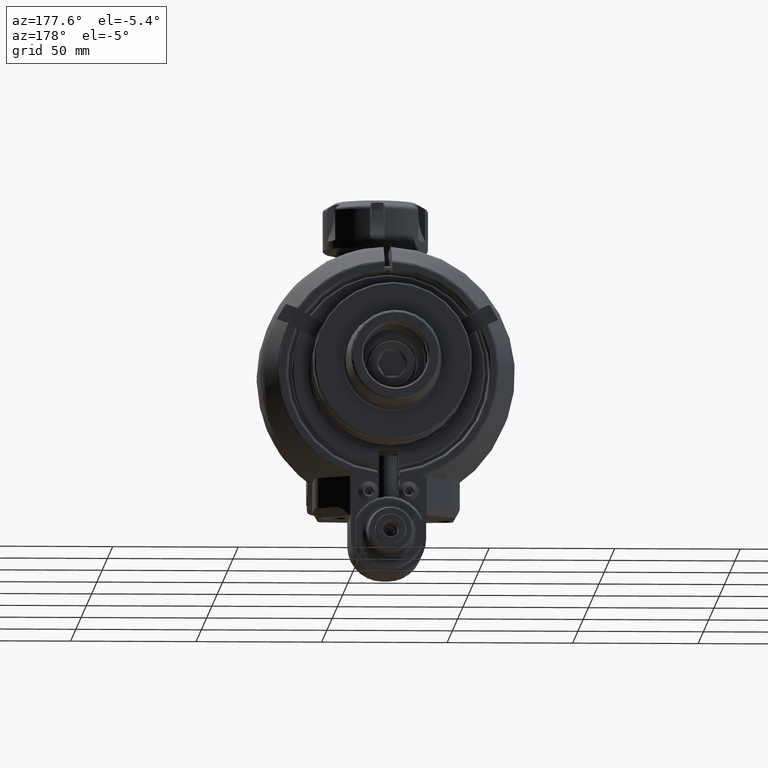
[diagram: clean part render]
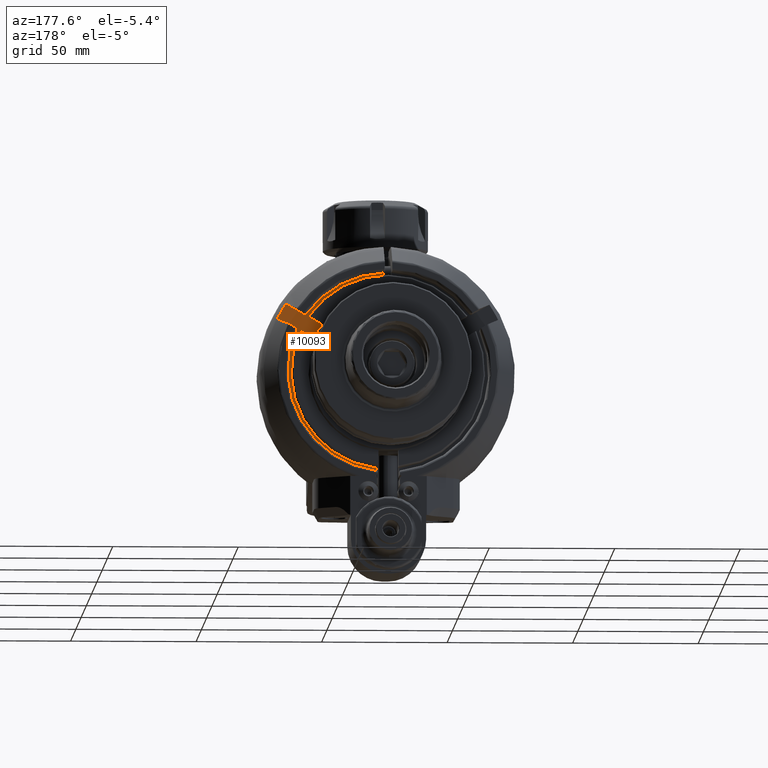
[diagram: same view with one face highlighted and labeled with its STEP entity id]
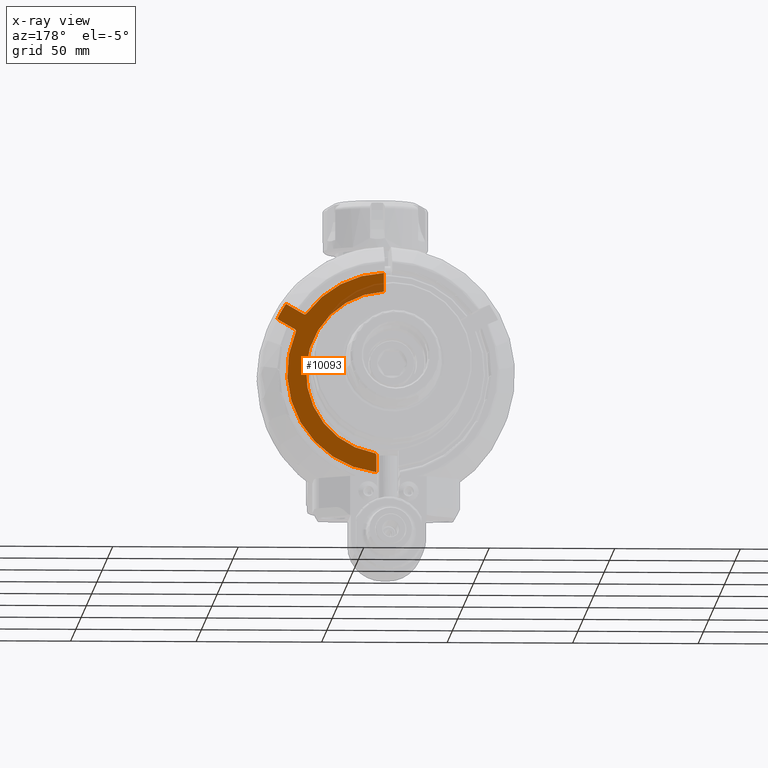
[diagram: x-ray of the same camera — body ghosted, the highlighted face saturated]
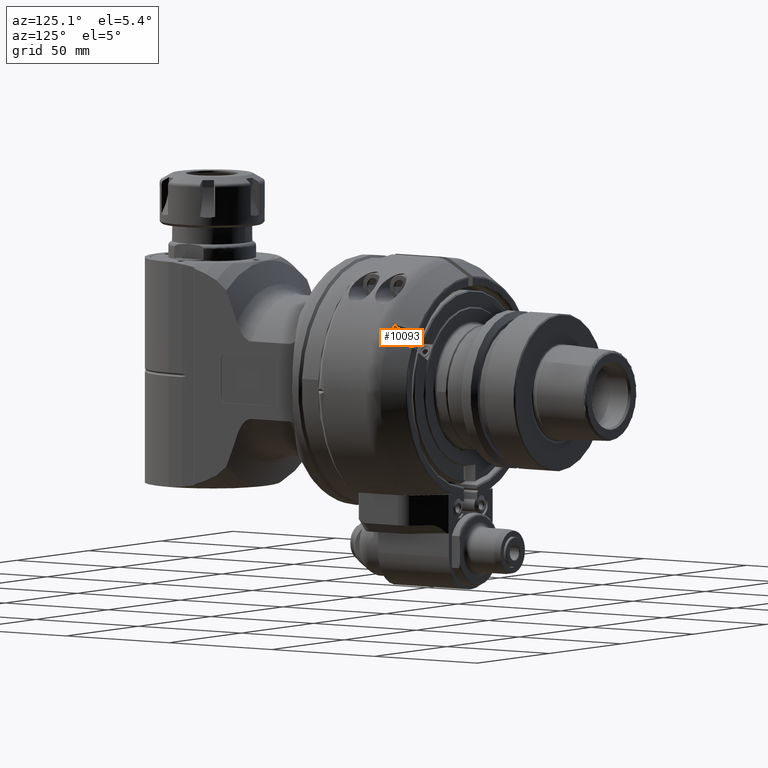
[diagram: same view with one face highlighted and labeled with its STEP entity id]
A machine part, auxiliary view. The second image highlights one B-rep face of the part: STEP entity #10093.
The next image is the same camera in x-ray: the body ghosted, the highlighted face saturated — about 7% of this face is hidden behind the body in this view.
A second angle (auxiliary view) of the same face is appended — the face is thin or edge-on in the first view.
In plain terms, the highlighted planar face has unit normal (0, 1, 0).
Its self-contained STEP definition (entity closure, byte-faithful):
#1029=CIRCLE('',#11062,32.5);
#1030=CIRCLE('',#11064,1.);
#1032=CIRCLE('',#11069,40.);
#1033=CIRCLE('',#11071,1.);
#1035=CIRCLE('',#11077,48.90747728811);
#1036=CIRCLE('',#11078,40.);
#1037=CIRCLE('',#11079,1.);
#1622=FACE_OUTER_BOUND('',#2281,.T.);
#2281=EDGE_LOOP('',(#7941,#7942,#7943,#7944,#7945,#7946,#7947,#7948,#7949,
#7950,#7951));
#2957=LINE('',#18289,#3611);
#2960=LINE('',#18366,#3614);
#2961=LINE('',#18382,#3615);
#2962=LINE('',#18385,#3616);
#3611=VECTOR('',#13199,6.700645704298);
#3614=VECTOR('',#13218,8.02977950843773);
#3615=VECTOR('',#13223,8.02977950843773);
#3616=VECTOR('',#13226,7.50649894385);
#4462=VERTEX_POINT('',#18268);
#4466=VERTEX_POINT('',#18276);
#4467=VERTEX_POINT('',#18280);
#4469=VERTEX_POINT('',#18285);
#4471=VERTEX_POINT('',#18292);
#4472=VERTEX_POINT('',#18297);
#4474=VERTEX_POINT('',#18365);
#4476=VERTEX_POINT('',#18380);
#4477=VERTEX_POINT('',#18381);
#4478=VERTEX_POINT('',#18384);
#4479=VERTEX_POINT('',#18386);
#5702=EDGE_CURVE('',#4462,#4466,#1029,.T.);
#5703=EDGE_CURVE('',#4467,#4462,#1030,.T.);
#5708=EDGE_CURVE('',#4467,#4469,#2957,.T.);
#5711=EDGE_CURVE('',#4471,#4469,#1032,.T.);
#5712=EDGE_CURVE('',#4472,#4471,#1033,.T.);
#5716=EDGE_CURVE('',#4474,#4472,#2960,.T.);
#5719=EDGE_CURVE('',#4476,#4477,#2961,.T.);
#5720=EDGE_CURVE('',#4477,#4474,#1035,.T.);
#5721=EDGE_CURVE('',#4466,#4478,#2962,.T.);
#5722=EDGE_CURVE('',#4478,#4479,#1036,.T.);
#5723=EDGE_CURVE('',#4479,#4476,#1037,.T.);
#7941=ORIENTED_EDGE('',*,*,#5719,.T.);
#7942=ORIENTED_EDGE('',*,*,#5720,.T.);
#7943=ORIENTED_EDGE('',*,*,#5716,.T.);
#7944=ORIENTED_EDGE('',*,*,#5712,.T.);
#7945=ORIENTED_EDGE('',*,*,#5711,.T.);
#7946=ORIENTED_EDGE('',*,*,#5708,.F.);
#7947=ORIENTED_EDGE('',*,*,#5703,.T.);
#7948=ORIENTED_EDGE('',*,*,#5702,.T.);
#7949=ORIENTED_EDGE('',*,*,#5721,.T.);
#7950=ORIENTED_EDGE('',*,*,#5722,.T.);
#7951=ORIENTED_EDGE('',*,*,#5723,.T.);
#9638=PLANE('',#11076);
#10093=ADVANCED_FACE('',(#1622),#9638,.T.);
#11062=AXIS2_PLACEMENT_3D('',#18278,#13186,#13187);
#11064=AXIS2_PLACEMENT_3D('',#18281,#13190,#13191);
#11069=AXIS2_PLACEMENT_3D('',#18295,#13205,#13206);
#11071=AXIS2_PLACEMENT_3D('',#18298,#13209,#13210);
#11076=AXIS2_PLACEMENT_3D('',#18379,#13221,#13222);
#11077=AXIS2_PLACEMENT_3D('',#18383,#13224,#13225);
#11078=AXIS2_PLACEMENT_3D('',#18387,#13227,#13228);
#11079=AXIS2_PLACEMENT_3D('',#18388,#13229,#13230);
#13186=DIRECTION('center_axis',(0.,-1.,0.));
#13187=DIRECTION('ref_axis',(0.164179104477598,0.,-0.986430545782588));
#13190=DIRECTION('center_axis',(0.,1.,0.));
#13191=DIRECTION('ref_axis',(-1.,0.,1.136868377216E-13));
#13199=DIRECTION('',(0.,0.,-1.));
#13205=DIRECTION('center_axis',(0.,1.,0.));
#13206=DIRECTION('ref_axis',(0.915671403358766,0.,0.401927706274385));
#13209=DIRECTION('center_axis',(0.,-1.,0.));
#13210=DIRECTION('ref_axis',(-0.500000000000017,0.,0.866025403784429));
#13218=DIRECTION('',(-0.866025403784429,0.,-0.500000000000017));
#13221=DIRECTION('center_axis',(0.,1.,0.));
#13222=DIRECTION('ref_axis',(0.,0.,-1.));
#13223=DIRECTION('',(0.866025403784429,0.,0.500000000000017));
#13224=DIRECTION('center_axis',(0.,1.,0.));
#13225=DIRECTION('ref_axis',(0.828023092261376,0.,0.560693997365684));
#13226=DIRECTION('',(0.,0.,1.));
#13227=DIRECTION('center_axis',(0.,1.,0.));
#13228=DIRECTION('ref_axis',(0.0374999999999984,0.,0.999296627633657));
#13229=DIRECTION('center_axis',(0.,-1.,0.));
#13230=DIRECTION('ref_axis',(-0.805915305797651,0.,-0.592030843690664));
#18268=CARTESIAN_POINT('',(5.335820895522,31.,-32.05899273793));
#18276=CARTESIAN_POINT('',(1.5,31.,32.4653661615));
#18278=CARTESIAN_POINT('Origin',(0.,31.,0.));
#18280=CARTESIAN_POINT('',(4.5,31.,-33.04542328372));
#18281=CARTESIAN_POINT('Origin',(5.5,31.,-33.04542328372));
#18285=CARTESIAN_POINT('',(4.5,31.,-39.74606898801));
#18289=CARTESIAN_POINT('',(4.5,31.,-33.04542328372));
#18292=CARTESIAN_POINT('',(36.62685613435,31.,16.07710825097));
#18295=CARTESIAN_POINT('Origin',(0.,31.,0.));
#18297=CARTESIAN_POINT('',(37.04252753771,31.,17.34506136103));
#18298=CARTESIAN_POINT('Origin',(37.54252753771,31.,16.47903595725));
#18365=CARTESIAN_POINT('',(43.9965205788,31.,21.35995111525));
#18366=CARTESIAN_POINT('',(43.9965205788,31.,21.35995111525));
#18379=CARTESIAN_POINT('Origin',(0.,31.,-40.75));
#18380=CARTESIAN_POINT('',(33.54252753771,31.,23.40723918752));
#18381=CARTESIAN_POINT('',(40.4965205788,31.,27.42212894174));
#18382=CARTESIAN_POINT('',(33.54252753771,31.,23.40723918752));
#18383=CARTESIAN_POINT('Origin',(0.,31.,0.));
#18384=CARTESIAN_POINT('',(1.5,31.,39.97186510535));
#18385=CARTESIAN_POINT('',(1.5,31.,32.4653661615));
#18386=CARTESIAN_POINT('',(32.23661223191,31.,23.68123374762));
#18387=CARTESIAN_POINT('Origin',(0.,31.,0.));
#18388=CARTESIAN_POINT('Origin',(33.04252753771,31.,24.27326459131));